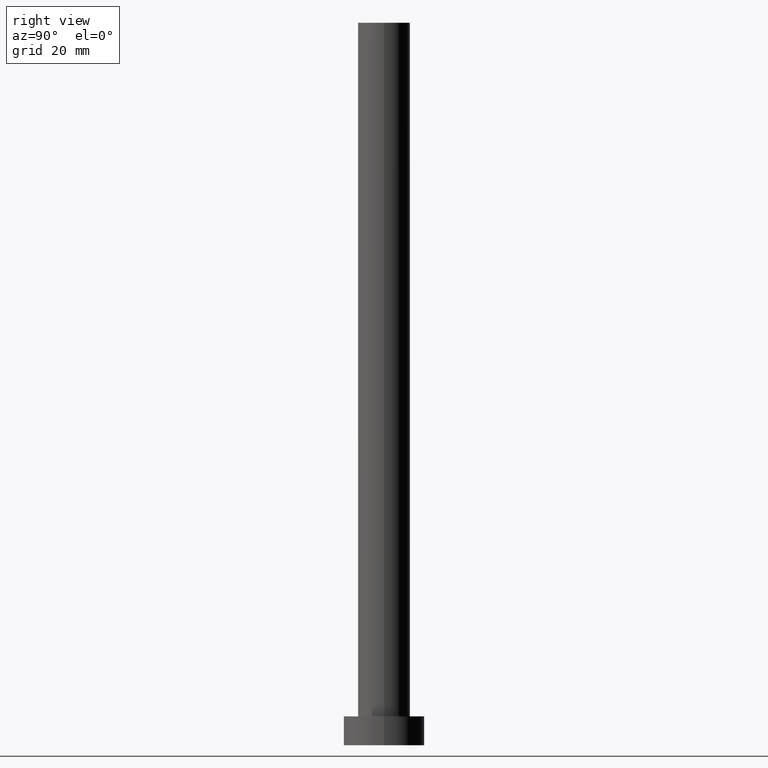
[diagram: clean part render]
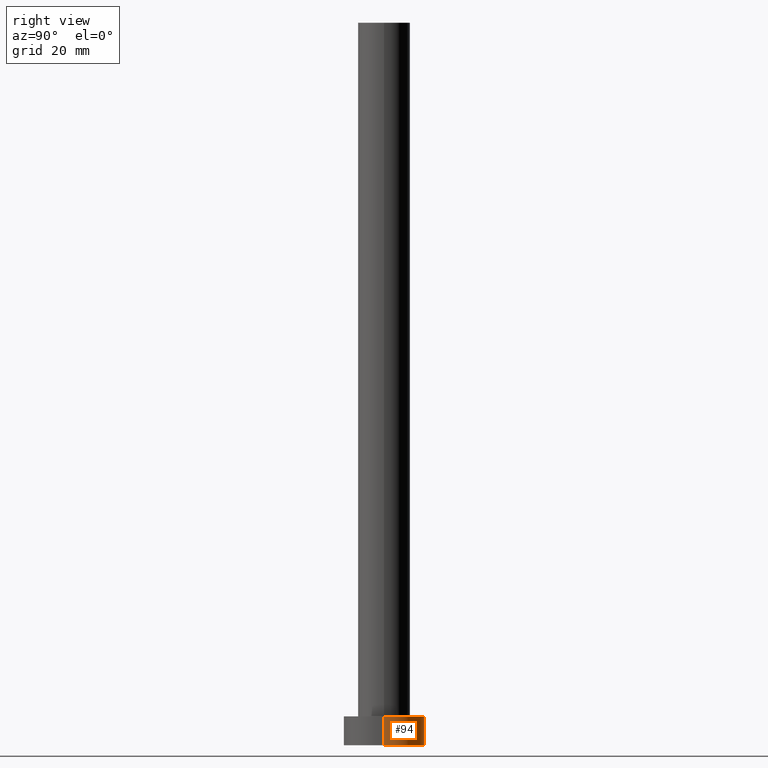
[diagram: same view with one face highlighted and labeled with its STEP entity id]
A machine part, right view. The second image highlights one B-rep face of the part: STEP entity #94.
In plain terms, the highlighted cylindrical surface (partial cylindrical patch) has radius 7 mm, axis along (-0, -0, -1).
Its self-contained STEP definition (entity closure, byte-faithful):
#2 = DIRECTION ( 'NONE',  ( -1.000000000000000000, 0.000000000000000000, 0.000000000000000000 ) ) ;
#3 = AXIS2_PLACEMENT_3D ( 'NONE', #54, #109, #191 ) ;
#5 = DIRECTION ( 'NONE',  ( -0.000000000000000000, -0.000000000000000000, -1.000000000000000000 ) ) ;
#12 = ORIENTED_EDGE ( 'NONE', *, *, #113, .F. ) ;
#19 = CIRCLE ( 'NONE', #98, 7.000000000000000000 ) ;
#21 = DIRECTION ( 'NONE',  ( 0.000000000000000000, 0.000000000000000000, 1.000000000000000000 ) ) ;
#27 = VERTEX_POINT ( 'NONE', #212 ) ;
#48 = VERTEX_POINT ( 'NONE', #217 ) ;
#54 = CARTESIAN_POINT ( 'NONE',  ( 0.000000000000000000, 0.000000000000000000, 0.000000000000000000 ) ) ;
#55 = EDGE_CURVE ( 'NONE', #101, #207, #198, .T. ) ;
#59 = CARTESIAN_POINT ( 'NONE',  ( 7.000000000000000000, 8.572527594031473190E-16, 0.000000000000000000 ) ) ;
#61 = FACE_OUTER_BOUND ( 'NONE', #143, .T. ) ;
#62 = DIRECTION ( 'NONE',  ( -0.000000000000000000, -0.000000000000000000, -1.000000000000000000 ) ) ;
#74 = CARTESIAN_POINT ( 'NONE',  ( 0.000000000000000000, 0.000000000000000000, 5.000000000000000000 ) ) ;
#76 = LINE ( 'NONE', #133, #165 ) ;
#77 = DIRECTION ( 'NONE',  ( 1.000000000000000000, 0.000000000000000000, 0.000000000000000000 ) ) ;
#92 = CARTESIAN_POINT ( 'NONE',  ( -7.000000000000000000, 0.000000000000000000, 5.000000000000000000 ) ) ;
#94 = ADVANCED_FACE ( 'NONE', ( #61 ), #95, .T. ) ;
#95 = CYLINDRICAL_SURFACE ( 'NONE', #110, 7.000000000000000000 ) ;
#98 = AXIS2_PLACEMENT_3D ( 'NONE', #74, #21, #77 ) ;
#101 = VERTEX_POINT ( 'NONE', #59 ) ;
#109 = DIRECTION ( 'NONE',  ( 0.000000000000000000, 0.000000000000000000, 1.000000000000000000 ) ) ;
#110 = AXIS2_PLACEMENT_3D ( 'NONE', #194, #62, #2 ) ;
#113 = EDGE_CURVE ( 'NONE', #48, #27, #19, .T. ) ;
#122 = ORIENTED_EDGE ( 'NONE', *, *, #55, .T. ) ;
#133 = CARTESIAN_POINT ( 'NONE',  ( 7.000000000000000000, 8.572527594031473190E-16, 5.000000000000000000 ) ) ;
#137 = ORIENTED_EDGE ( 'NONE', *, *, #169, .F. ) ;
#143 = EDGE_LOOP ( 'NONE', ( #12, #251, #122, #137 ) ) ;
#158 = DIRECTION ( 'NONE',  ( -0.000000000000000000, -0.000000000000000000, -1.000000000000000000 ) ) ;
#163 = EDGE_CURVE ( 'NONE', #48, #101, #76, .T. ) ;
#165 = VECTOR ( 'NONE', #158, 1000.000000000000000 ) ;
#169 = EDGE_CURVE ( 'NONE', #27, #207, #255, .T. ) ;
#191 = DIRECTION ( 'NONE',  ( 1.000000000000000000, 0.000000000000000000, 0.000000000000000000 ) ) ;
#194 = CARTESIAN_POINT ( 'NONE',  ( 0.000000000000000000, 0.000000000000000000, 5.000000000000000000 ) ) ;
#198 = CIRCLE ( 'NONE', #3, 7.000000000000000000 ) ;
#207 = VERTEX_POINT ( 'NONE', #236 ) ;
#212 = CARTESIAN_POINT ( 'NONE',  ( -7.000000000000000000, 0.000000000000000000, 5.000000000000000000 ) ) ;
#217 = CARTESIAN_POINT ( 'NONE',  ( 7.000000000000000000, 8.572527594031473190E-16, 5.000000000000000000 ) ) ;
#225 = VECTOR ( 'NONE', #5, 1000.000000000000000 ) ;
#236 = CARTESIAN_POINT ( 'NONE',  ( -7.000000000000000000, 0.000000000000000000, 0.000000000000000000 ) ) ;
#251 = ORIENTED_EDGE ( 'NONE', *, *, #163, .T. ) ;
#255 = LINE ( 'NONE', #92, #225 ) ;